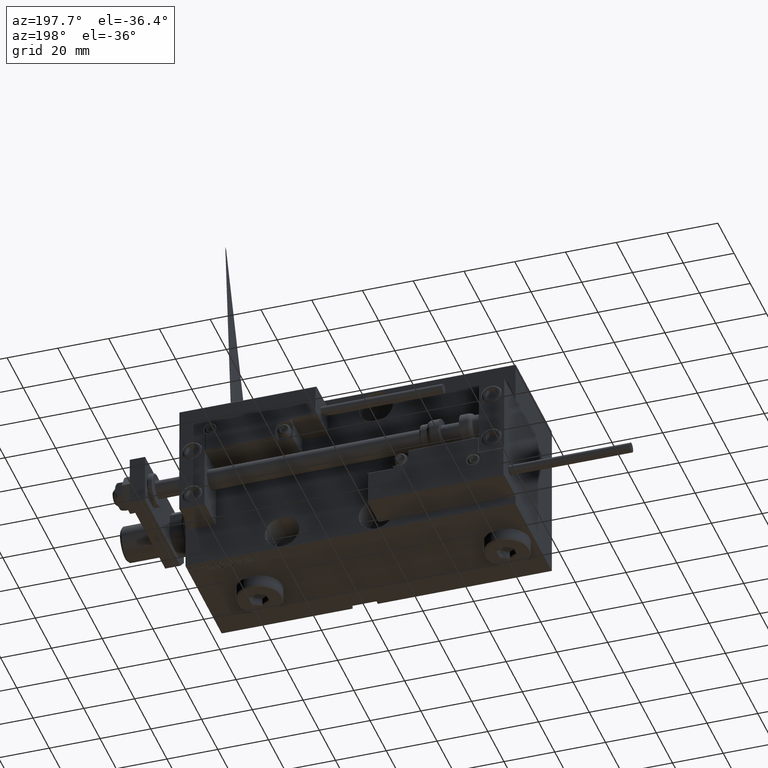
[diagram: clean part render]
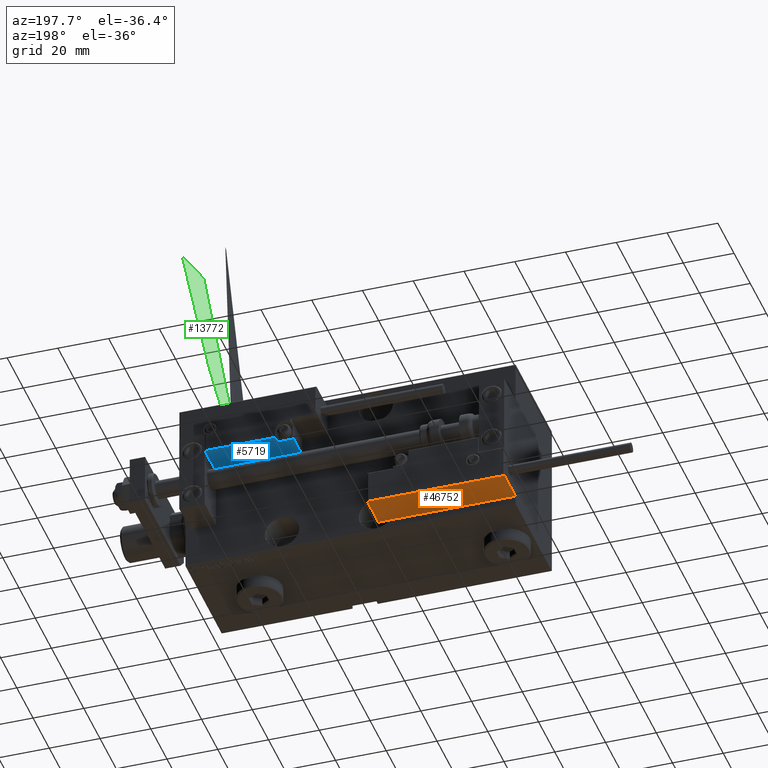
[diagram: same view with three faces highlighted in distinct colors, each labeled with its STEP entity id]
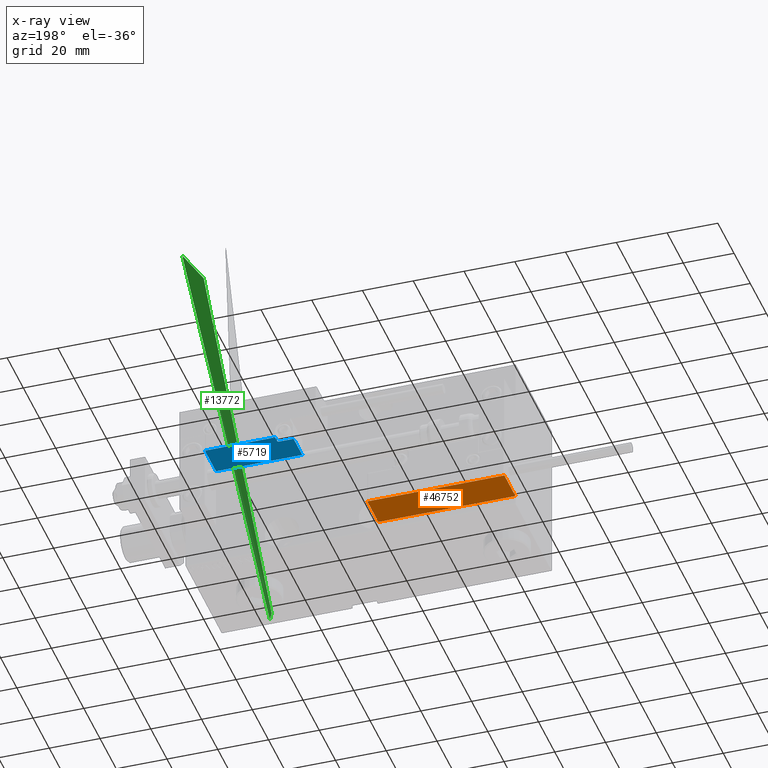
[diagram: x-ray of the same camera — body ghosted, the three highlighted faces saturated]
A machine part, auxiliary view with three faces highlighted in distinct colors.
The next image is the same camera in x-ray (body ghosted, the three faces saturated) — at least one of them is partly hidden behind the body in this view.
Their STEP definitions:

[orange] entity #46752 — the highlighted planar face has unit normal (-0, -0, 1).
#2305 = CARTESIAN_POINT ( 'NONE',  ( 27.00000000000006395, 20.00000000000001776, 0.000000000000000000 ) ) ;
#4475 = LINE ( 'NONE', #40849, #18030 ) ;
#8230 = ORIENTED_EDGE ( 'NONE', *, *, #33521, .T. ) ;
#10014 = DIRECTION ( 'NONE',  ( -0.000000000000000000, -0.000000000000000000, -1.000000000000000000 ) ) ;
#10946 = VECTOR ( 'NONE', #15486, 1000.000000000000000 ) ;
#12878 = EDGE_CURVE ( 'NONE', #48047, #18224, #4475, .T. ) ;
#13406 = CARTESIAN_POINT ( 'NONE',  ( -26.99999999999993605, 20.00000000000002132, 14.00000000000000000 ) ) ;
#14968 = CARTESIAN_POINT ( 'NONE',  ( 27.00000000000006395, 20.00000000000001776, 14.00000000000000000 ) ) ;
#15234 = LINE ( 'NONE', #46922, #38384 ) ;
#15486 = DIRECTION ( 'NONE',  ( -0.000000000000000000, -0.000000000000000000, -1.000000000000000000 ) ) ;
#17440 = CARTESIAN_POINT ( 'NONE',  ( -26.99999999999993605, 20.00000000000002132, 13.70000000000000107 ) ) ;
#18030 = VECTOR ( 'NONE', #44234, 1000.000000000000000 ) ;
#18224 = VERTEX_POINT ( 'NONE', #49901 ) ;
#19582 = ORIENTED_EDGE ( 'NONE', *, *, #12878, .T. ) ;
#19939 = AXIS2_PLACEMENT_3D ( 'NONE', #36469, #36979, #33073 ) ;
#20334 = ORIENTED_EDGE ( 'NONE', *, *, #32445, .T. ) ;
#26156 = LINE ( 'NONE', #13406, #29162 ) ;
#27413 = CARTESIAN_POINT ( 'NONE',  ( -26.99999999999993605, 20.00000000000002132, 0.000000000000000000 ) ) ;
#28002 = VERTEX_POINT ( 'NONE', #2305 ) ;
#29162 = VECTOR ( 'NONE', #10014, 1000.000000000000000 ) ;
#29729 = VERTEX_POINT ( 'NONE', #27413 ) ;
#31007 = EDGE_LOOP ( 'NONE', ( #47320, #19582, #20334, #8230 ) ) ;
#32445 = EDGE_CURVE ( 'NONE', #18224, #28002, #46911, .T. ) ;
#32820 = PLANE ( 'NONE',  #19939 ) ;
#33073 = DIRECTION ( 'NONE',  ( 1.000000000000000000, -6.424901762877063495E-17, 0.000000000000000000 ) ) ;
#33521 = EDGE_CURVE ( 'NONE', #28002, #29729, #15234, .T. ) ;
#36469 = CARTESIAN_POINT ( 'NONE',  ( 27.00000000000006395, 20.00000000000001776, 14.00000000000000000 ) ) ;
#36979 = DIRECTION ( 'NONE',  ( -6.424901762877063495E-17, -1.000000000000000000, 0.000000000000000000 ) ) ;
#38384 = VECTOR ( 'NONE', #51321, 1000.000000000000000 ) ;
#40849 = CARTESIAN_POINT ( 'NONE',  ( 27.00000000000006395, 20.00000000000001776, 13.70000000000000107 ) ) ;
#44234 = DIRECTION ( 'NONE',  ( 1.000000000000000000, -6.424901762877063495E-17, -0.000000000000000000 ) ) ;
#44519 = FACE_OUTER_BOUND ( 'NONE', #31007, .T. ) ;
#46752 = ADVANCED_FACE ( 'NONE', ( #44519 ), #32820, .F. ) ;
#46911 = LINE ( 'NONE', #14968, #10946 ) ;
#46922 = CARTESIAN_POINT ( 'NONE',  ( 27.00000000000006395, 20.00000000000001776, 0.000000000000000000 ) ) ;
#47320 = ORIENTED_EDGE ( 'NONE', *, *, #49187, .F. ) ;
#48047 = VERTEX_POINT ( 'NONE', #17440 ) ;
#49187 = EDGE_CURVE ( 'NONE', #48047, #29729, #26156, .T. ) ;
#49901 = CARTESIAN_POINT ( 'NONE',  ( 27.00000000000006395, 20.00000000000001776, 13.70000000000000107 ) ) ;
#51321 = DIRECTION ( 'NONE',  ( -1.000000000000000000, 6.424901762877062263E-17, 0.000000000000000000 ) ) ;

[blue] entity #5719 — the highlighted planar face has unit normal (0, 0, 1).
#1267 = CARTESIAN_POINT ( 'NONE',  ( 16.99999999999999289, 3.252606517456513302E-15, 0.000000000000000000 ) ) ;
#1748 = CIRCLE ( 'NONE', #30810, 0.5999999999999998668 ) ;
#2088 = CARTESIAN_POINT ( 'NONE',  ( 16.99999999999999289, 3.252606517456513302E-15, 10.69999999999999929 ) ) ;
#2530 = DIRECTION ( 'NONE',  ( -0.000000000000000000, -0.000000000000000000, -1.000000000000000000 ) ) ;
#2661 = VECTOR ( 'NONE', #43667, 1000.000000000000000 ) ;
#2840 = CARTESIAN_POINT ( 'NONE',  ( -16.99999999999999289, 3.252606517456513302E-15, 13.70000000000000107 ) ) ;
#3784 = EDGE_CURVE ( 'NONE', #9260, #48785, #42286, .T. ) ;
#5719 = ADVANCED_FACE ( 'NONE', ( #45388 ), #30056, .F. ) ;
#5794 = VERTEX_POINT ( 'NONE', #19412 ) ;
#6302 = VERTEX_POINT ( 'NONE', #2840 ) ;
#6572 = ORIENTED_EDGE ( 'NONE', *, *, #22010, .T. ) ;
#6765 = DIRECTION ( 'NONE',  ( 0.000000000000000000, -0.000000000000000000, 1.000000000000000000 ) ) ;
#7413 = VECTOR ( 'NONE', #26381, 1000.000000000000000 ) ;
#9260 = VERTEX_POINT ( 'NONE', #2088 ) ;
#9781 = DIRECTION ( 'NONE',  ( 0.000000000000000000, -0.000000000000000000, 1.000000000000000000 ) ) ;
#9889 = CARTESIAN_POINT ( 'NONE',  ( 10.70000000000000107, 3.252606517456513302E-15, 14.00000000000000000 ) ) ;
#9982 = LINE ( 'NONE', #41430, #7413 ) ;
#11061 = VERTEX_POINT ( 'NONE', #12380 ) ;
#12380 = CARTESIAN_POINT ( 'NONE',  ( 10.70000000000000107, 3.252606517456513302E-15, 13.70000000000000107 ) ) ;
#13966 = CARTESIAN_POINT ( 'NONE',  ( -16.99999999999999289, 3.252606517456513302E-15, 0.000000000000000000 ) ) ;
#16645 = LINE ( 'NONE', #47814, #2661 ) ;
#16988 = CARTESIAN_POINT ( 'NONE',  ( 10.70000000000000107, 3.252606517456513302E-15, 11.29999999999999893 ) ) ;
#18152 = EDGE_LOOP ( 'NONE', ( #27227, #32508, #29398, #22983, #27275, #6572, #42502 ) ) ;
#19412 = CARTESIAN_POINT ( 'NONE',  ( -16.99999999999999289, 3.252606517456513302E-15, 0.000000000000000000 ) ) ;
#19473 = DIRECTION ( 'NONE',  ( -0.000000000000000000, -0.000000000000000000, -1.000000000000000000 ) ) ;
#20822 = EDGE_CURVE ( 'NONE', #46715, #11061, #42367, .T. ) ;
#21211 = DIRECTION ( 'NONE',  ( -0.000000000000000000, -1.000000000000000000, -0.000000000000000000 ) ) ;
#22010 = EDGE_CURVE ( 'NONE', #6302, #5794, #34519, .T. ) ;
#22983 = ORIENTED_EDGE ( 'NONE', *, *, #20822, .T. ) ;
#23633 = VERTEX_POINT ( 'NONE', #26291 ) ;
#24008 = VECTOR ( 'NONE', #19473, 1000.000000000000000 ) ;
#25667 = CARTESIAN_POINT ( 'NONE',  ( -16.99999999999999289, 3.252606517456513302E-15, 14.00000000000000000 ) ) ;
#25846 = EDGE_CURVE ( 'NONE', #5794, #48785, #50315, .T. ) ;
#26291 = CARTESIAN_POINT ( 'NONE',  ( 11.29999999999999893, 3.252606517456513302E-15, 10.69999999999999929 ) ) ;
#26381 = DIRECTION ( 'NONE',  ( -1.000000000000000000, 0.000000000000000000, -0.000000000000000000 ) ) ;
#27227 = ORIENTED_EDGE ( 'NONE', *, *, #3784, .F. ) ;
#27275 = ORIENTED_EDGE ( 'NONE', *, *, #51004, .T. ) ;
#29398 = ORIENTED_EDGE ( 'NONE', *, *, #30389, .F. ) ;
#29497 = AXIS2_PLACEMENT_3D ( 'NONE', #25667, #45893, #9781 ) ;
#30056 = PLANE ( 'NONE',  #29497 ) ;
#30389 = EDGE_CURVE ( 'NONE', #46715, #23633, #1748, .T. ) ;
#30810 = AXIS2_PLACEMENT_3D ( 'NONE', #44834, #21211, #33391 ) ;
#32508 = ORIENTED_EDGE ( 'NONE', *, *, #45547, .T. ) ;
#33391 = DIRECTION ( 'NONE',  ( 0.000000000000000000, 0.000000000000000000, 1.000000000000000000 ) ) ;
#34476 = DIRECTION ( 'NONE',  ( 1.000000000000000000, 0.000000000000000000, 0.000000000000000000 ) ) ;
#34519 = LINE ( 'NONE', #51131, #24008 ) ;
#38014 = VECTOR ( 'NONE', #6765, 1000.000000000000000 ) ;
#38149 = CARTESIAN_POINT ( 'NONE',  ( 16.99999999999999289, 3.252606517456513302E-15, 14.00000000000000000 ) ) ;
#41430 = CARTESIAN_POINT ( 'NONE',  ( 11.00000000000000000, 3.252606517456513302E-15, 10.69999999999999929 ) ) ;
#42286 = LINE ( 'NONE', #38149, #51035 ) ;
#42367 = LINE ( 'NONE', #9889, #38014 ) ;
#42502 = ORIENTED_EDGE ( 'NONE', *, *, #25846, .T. ) ;
#43667 = DIRECTION ( 'NONE',  ( -1.000000000000000000, 0.000000000000000000, -0.000000000000000000 ) ) ;
#44834 = CARTESIAN_POINT ( 'NONE',  ( 11.29999999999999893, 3.252606517456513302E-15, 11.29999999999999893 ) ) ;
#45388 = FACE_OUTER_BOUND ( 'NONE', #18152, .T. ) ;
#45547 = EDGE_CURVE ( 'NONE', #9260, #23633, #9982, .T. ) ;
#45893 = DIRECTION ( 'NONE',  ( 0.000000000000000000, 1.000000000000000000, 0.000000000000000000 ) ) ;
#46715 = VERTEX_POINT ( 'NONE', #16988 ) ;
#47814 = CARTESIAN_POINT ( 'NONE',  ( -16.99999999999999289, 3.252606517456513302E-15, 13.70000000000000107 ) ) ;
#48042 = VECTOR ( 'NONE', #34476, 1000.000000000000000 ) ;
#48785 = VERTEX_POINT ( 'NONE', #1267 ) ;
#50315 = LINE ( 'NONE', #13966, #48042 ) ;
#51004 = EDGE_CURVE ( 'NONE', #11061, #6302, #16645, .T. ) ;
#51035 = VECTOR ( 'NONE', #2530, 1000.000000000000000 ) ;
#51131 = CARTESIAN_POINT ( 'NONE',  ( -16.99999999999999289, 3.252606517456513302E-15, 14.00000000000000000 ) ) ;

[green] entity #13772 — the highlighted planar face has unit normal (-0.9687, -0, -0.2483).
#76 = DIRECTION ( 'NONE',  ( 0.9686831400194154673, 0.000000000000000000, -0.2483001696377301060 ) ) ;
#2209 = DIRECTION ( 'NONE',  ( -0.8571673007021114454, 1.049727191138617586E-16, 0.5150380749100555988 ) ) ;
#2650 = EDGE_CURVE ( 'NONE', #38191, #35540, #13003, .T. ) ;
#3409 = VERTEX_POINT ( 'NONE', #7379 ) ;
#3969 = PLANE ( 'NONE',  #5619 ) ;
#4421 = EDGE_LOOP ( 'NONE', ( #35911, #27886, #26598, #21092 ) ) ;
#4704 = VECTOR ( 'NONE', #2209, 1000.000000000000000 ) ;
#5619 = AXIS2_PLACEMENT_3D ( 'NONE', #35681, #76, #31782 ) ;
#6133 = VERTEX_POINT ( 'NONE', #8065 ) ;
#7379 = CARTESIAN_POINT ( 'NONE',  ( -4.221797519202691719E-15, 0.000000000000000000, 117.4463423691328785 ) ) ;
#8065 = CARTESIAN_POINT ( 'NONE',  ( -9.000000000000000000, 0.000000000000000000, 129.5000000000000568 ) ) ;
#8186 = CARTESIAN_POINT ( 'NONE',  ( 18.91346153846154721, 22.50000000000000000, -30.32552083333333215 ) ) ;
#8575 = CARTESIAN_POINT ( 'NONE',  ( -8.500000000000062172, 0.000000000000000000, 130.0000000000000000 ) ) ;
#8579 = EDGE_CURVE ( 'NONE', #3409, #33693, #21988, .T. ) ;
#9861 = CARTESIAN_POINT ( 'NONE',  ( 19.63772035256410575, 22.50000000000000000, -27.49999999999999645 ) ) ;
#12479 = LINE ( 'NONE', #8575, #50443 ) ;
#13003 = LINE ( 'NONE', #9861, #34377 ) ;
#13702 = CARTESIAN_POINT ( 'NONE',  ( 19.63772035256410575, 22.50000000000000000, -27.49999999999999645 ) ) ;
#13772 = ADVANCED_FACE ( 'NONE', ( #39581 ), #3969, .T. ) ;
#16918 = CARTESIAN_POINT ( 'NONE',  ( 19.63772035256410575, 22.30000000000000071, -27.49999999999999645 ) ) ;
#18604 = DIRECTION ( 'NONE',  ( -0.2483001696377301060, 0.000000000000000000, -0.9686831400194154673 ) ) ;
#19049 = EDGE_CURVE ( 'NONE', #42945, #46059, #21989, .T. ) ;
#20827 = DIRECTION ( 'NONE',  ( -0.2483001696377301060, 0.000000000000000000, -0.9686831400194154673 ) ) ;
#21092 = ORIENTED_EDGE ( 'NONE', *, *, #41569, .T. ) ;
#21988 = LINE ( 'NONE', #42748, #4704 ) ;
#21989 = LINE ( 'NONE', #42226, #50382 ) ;
#25506 = CARTESIAN_POINT ( 'NONE',  ( -8.500000000000062172, 0.000000000000000000, 130.0000000000000000 ) ) ;
#26598 = ORIENTED_EDGE ( 'NONE', *, *, #19049, .T. ) ;
#27886 = ORIENTED_EDGE ( 'NONE', *, *, #8579, .F. ) ;
#31782 = DIRECTION ( 'NONE',  ( -0.2483001696377301060, 0.000000000000000000, -0.9686831400194154673 ) ) ;
#33693 = VERTEX_POINT ( 'NONE', #41670 ) ;
#34377 = VECTOR ( 'NONE', #20827, 1000.000000000000114 ) ;
#35540 = VERTEX_POINT ( 'NONE', #8186 ) ;
#35681 = CARTESIAN_POINT ( 'NONE',  ( 19.63772035256410575, 22.30000000000000071, -27.49999999999999645 ) ) ;
#35911 = ORIENTED_EDGE ( 'NONE', *, *, #2650, .F. ) ;
#36646 = DIRECTION ( 'NONE',  ( -0.7071067811865426878, 0.000000000000000000, -0.7071067811865524577 ) ) ;
#37489 = CARTESIAN_POINT ( 'NONE',  ( 18.91346153846154721, 22.30000000000000071, -30.32552083333333215 ) ) ;
#38191 = VERTEX_POINT ( 'NONE', #13702 ) ;
#39581 = FACE_OUTER_BOUND ( 'NONE', #4421, .T. ) ;
#41569 = EDGE_CURVE ( 'NONE', #48133, #6133, #12479, .T. ) ;
#41670 = CARTESIAN_POINT ( 'NONE',  ( -4.249999999999995559, 5.204748896376246755E-16, 120.0000000000000142 ) ) ;
#42226 = CARTESIAN_POINT ( 'NONE',  ( 19.63772035256410575, 22.30000000000000071, -27.49999999999999645 ) ) ;
#42748 = CARTESIAN_POINT ( 'NONE',  ( -4.249999999999995559, 5.204748896376246755E-16, 120.0000000000000142 ) ) ;
#42945 = VERTEX_POINT ( 'NONE', #16918 ) ;
#46059 = VERTEX_POINT ( 'NONE', #37489 ) ;
#48133 = VERTEX_POINT ( 'NONE', #25506 ) ;
#50382 = VECTOR ( 'NONE', #18604, 1000.000000000000114 ) ;
#50443 = VECTOR ( 'NONE', #36646, 1000.000000000000000 ) ;